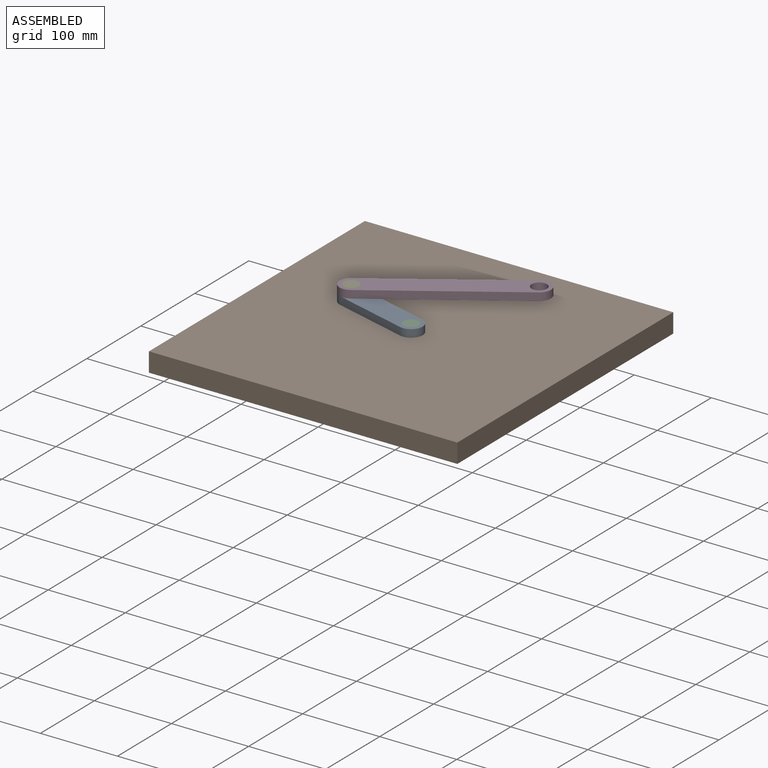
[diagram: assembled view]
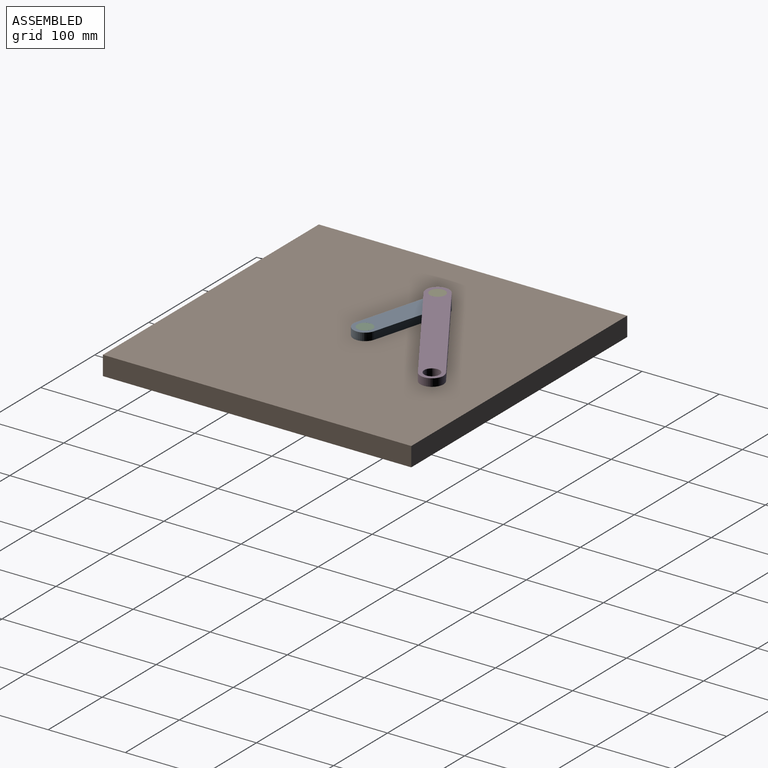
[diagram: assembled view, second angle]
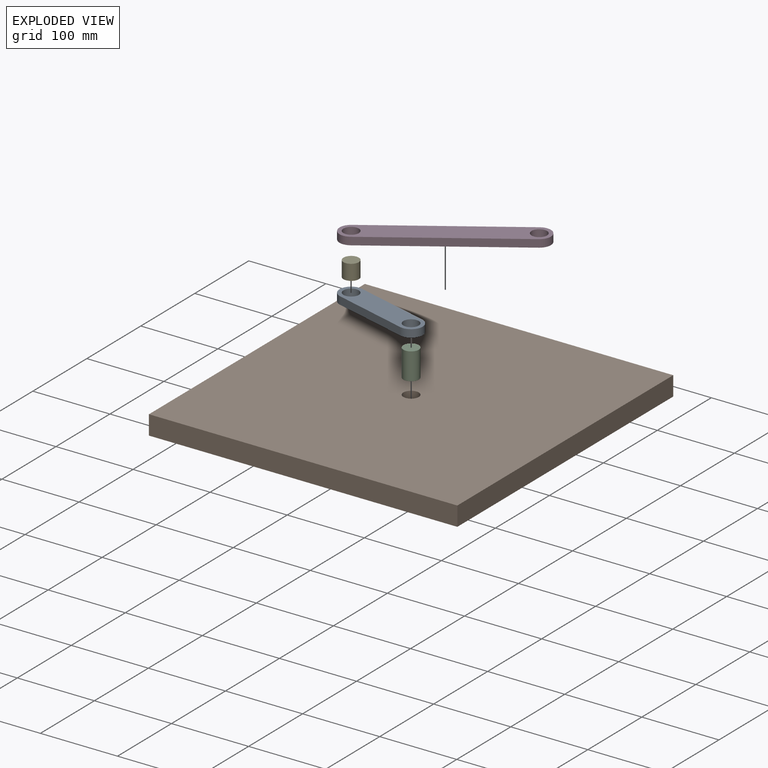
[diagram: exploded view]
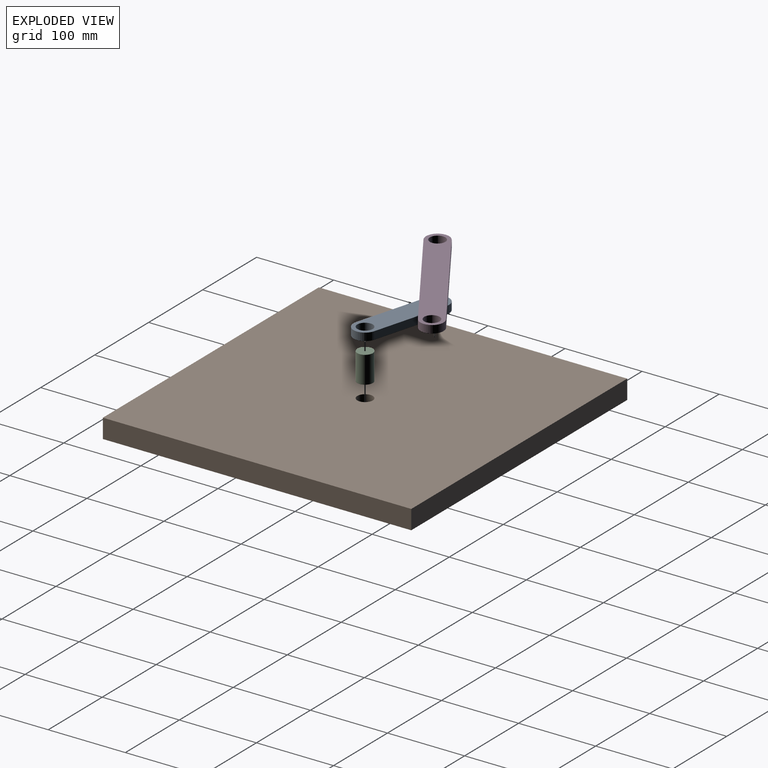
[diagram: exploded view, second angle]
ASSEMBLY  parts=5 mates=4
PART A: 8 faces, bbox 130x30x10 mm
  f0: plane 100x10mm, normal (0,1,0), area 1000mm2, adj f1,f4,f6,f7
  f1: cylinder r=15mm len=30mm, axis (0,0,-1), area 471.2mm2, adj f0,f2,f6,f7
  f2: plane 100x10mm, normal (0,-1,0), area 1000mm2, adj f1,f4,f6,f7
  f3: cylinder r=10mm len=20mm, axis (0,0,-1), area 628.3mm2, adj f6,f7
  f4: cylinder r=15mm len=30mm, axis (0,0,-1), area 471.2mm2, adj f0,f2,f6,f7
  f5: cylinder r=10mm len=20mm, axis (0,0,-1), area 628.3mm2, adj f6,f7
  f6: plane 130x30mm, normal (0,0,1), area 3078.5mm2, adj f0,f1,f2,f3,f4,f5
  f7: plane 130x30mm, normal (0,0,-1), area 3078.5mm2, adj f0,f1,f2,f3,f4,f5
PART B: 7 faces, bbox 400x400x25 mm
  f0: plane 400x25mm, normal (1,0,0), area 10000mm2, adj f1,f3,f5,f6
  f1: plane 400x25mm, normal (0,1,0), area 10000mm2, adj f0,f2,f5,f6
  f2: plane 400x25mm, normal (-1,0,0), area 10000mm2, adj f1,f3,f5,f6
  f3: plane 400x25mm, normal (0,-1,0), area 10000mm2, adj f0,f2,f5,f6
  f4: cylinder r=10mm len=25mm, axis (0,0,-1), area 1570.8mm2, adj f5,f6
  f5: plane 400x400mm, normal (0,0,1), area 159685.8mm2, adj f0,f1,f2,f3,f4
  f6: plane 400x400mm, normal (0,0,-1), area 159685.8mm2, adj f0,f1,f2,f3,f4
PART C: 3 faces, bbox 20x20x35 mm
  f0: cylinder r=10mm len=35mm, axis (0,0,-1), area 2199.1mm2, adj f1,f2
  f1: plane 20x20mm, normal (0,0,1), area 314.2mm2, adj f0
  f2: plane 20x20mm, normal (0,0,-1), area 314.2mm2, adj f0
PART D: 8 faces, bbox 230x30x10 mm
  f0: plane 200x10mm, normal (0,1,0), area 2000mm2, adj f1,f4,f6,f7
  f1: cylinder r=15mm len=30mm, axis (0,0,-1), area 471.2mm2, adj f0,f2,f6,f7
  f2: plane 200x10mm, normal (0,-1,0), area 2000mm2, adj f1,f4,f6,f7
  f3: cylinder r=10mm len=20mm, axis (0,0,-1), area 628.3mm2, adj f6,f7
  f4: cylinder r=15mm len=30mm, axis (0,0,-1), area 471.2mm2, adj f0,f2,f6,f7
  f5: cylinder r=10mm len=20mm, axis (0,0,-1), area 628.3mm2, adj f6,f7
  f6: plane 230x30mm, normal (0,0,1), area 6078.5mm2, adj f0,f1,f2,f3,f4,f5
  f7: plane 230x30mm, normal (0,0,-1), area 6078.5mm2, adj f0,f1,f2,f3,f4,f5
PART E: 3 faces, bbox 20x20x20 mm
  f0: cylinder r=10mm len=20mm, axis (0,0,-1), area 1256.6mm2, adj f1,f2
  f1: plane 20x20mm, normal (0,0,1), area 314.2mm2, adj f0
  f2: plane 20x20mm, normal (0,0,-1), area 314.2mm2, adj f0
PLACE A rot(axis=(0,0,1),164.6deg) t=(-156.56,-31.31,3.68)mm
PLACE B t=(-107.96,-44.74,-13.82)mm
PLACE C t=(-107.96,-44.74,-8.82)mm
PLACE D rot(axis=(0,0,1),33.3deg) t=(-120.76,36.77,13.68)mm
PLACE E rot(axis=(0,0,1),164.6deg) t=(-204.35,-18.11,8.68)mm
MATE fastened E.f0 <-> A.f4  axis (0,0,-1) through (-204.35,-18.11,-1.32)mm
MATE revolute D.f1 <-> E.f0  axis (0,0,1) through (-204.35,-18.11,18.68)mm
MATE fastened C.f0 <-> B.f4  axis (0,0,-1) through (-107.96,-44.74,-26.32)mm
MATE revolute A.f1 <-> C.f0  axis (0,0,1) through (-107.96,-44.74,8.68)mm
